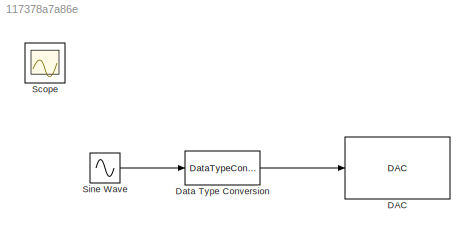
MODEL slx_117378a7a86e
KIND model
CONFIG AbsTol = auto
CONFIG EnableMultiTasking = on
CONFIG FixedStep = auto
CONFIG MaxStep = auto
CONFIG MinStep = auto
CONFIG RelTol = 1e-3
CONFIG SampleTimeConstraint = Unconstrained
CONFIG SolverName = FixedStepDiscrete
CONFIG StartTime = 0.0
CONFIG StopTime = 10
BLOCK [Reference] DAC  REF=microdaq_lib/Analog/DAC  (lib defined in slx_912f07ce28e3)
  SourceBlock = microdaq_lib/Analog/DAC
  SourceProductName = MicroDAQ
  SourceType = DAC block
BLOCK [DataTypeConversion] Data Type Conversion
  RndMeth = Floor
  SaturateOnIntegerOverflow = off
BLOCK [Scope] Scope
  Floating = off
  IOType = viewer
  NumInputPorts = 1
  ScopeSpecificationString = Simulink.scopes.TimeScopeBlockCfg('CurrentConfiguration', extmgr.ConfigurationSet(extmgr.Configuration('Core','General UI',true),extmgr.Configuration('Core','Source UI',true),extmgr.Configuration('Sources','WiredSimulink',true,'DataLoggingLimitDataPoints',true,'DataLoggingMaxPoints','7500','DataLoggingSaveFormat','Array','DataLoggingDecimation','1','DataLoggingDecimateData',true),extmgr.Configurat...<+2598ch>
BLOCK [Sin] Sine Wave
  Amplitude = 32768
  Bias = 32768
  SampleTime = 0.01
LINE Data Type Conversion:1 -> DAC:1
LINE Sine Wave:1 -> Data Type Conversion:1
